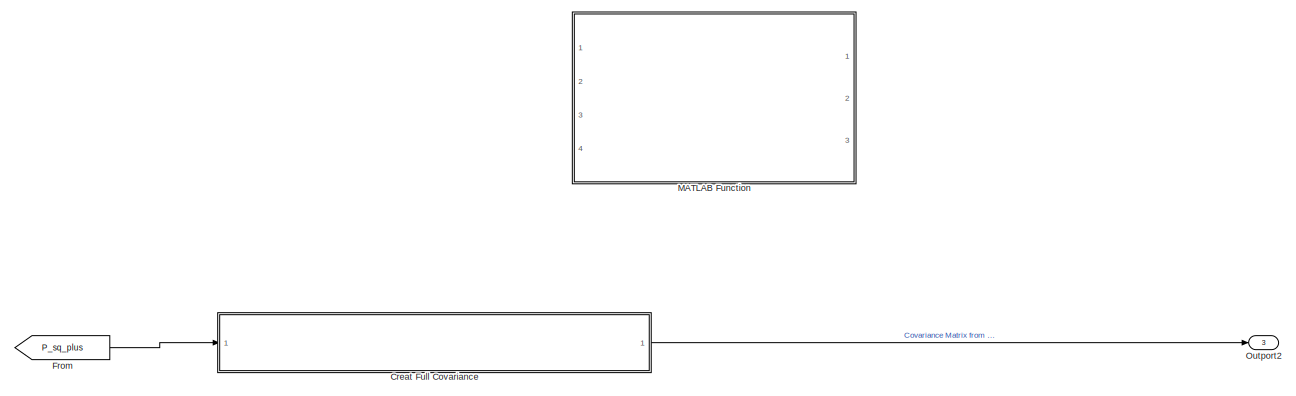
[diagram: root canvas - part 1/4, top center region]
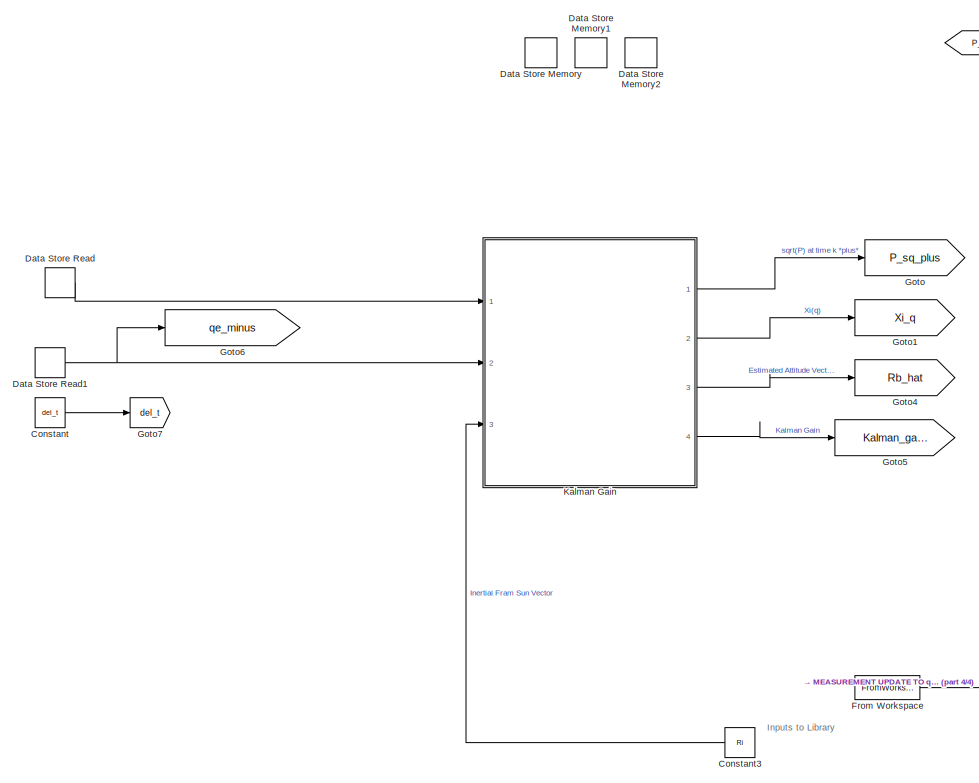
[diagram: root canvas - part 2/4, middle left region]
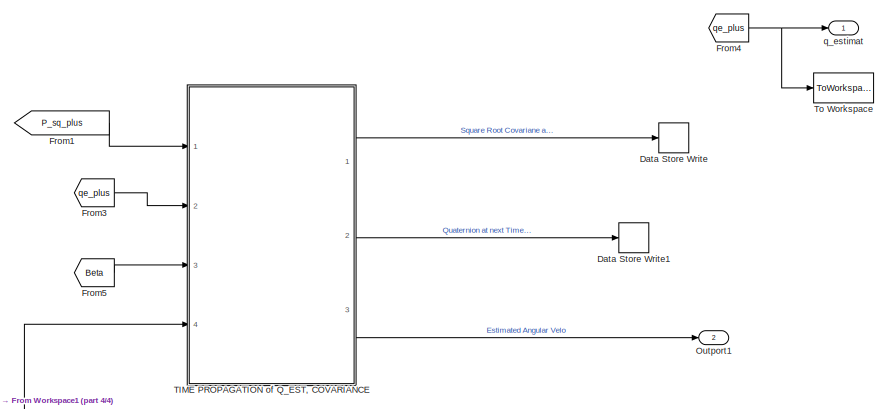
[diagram: root canvas - part 3/4, middle right region]
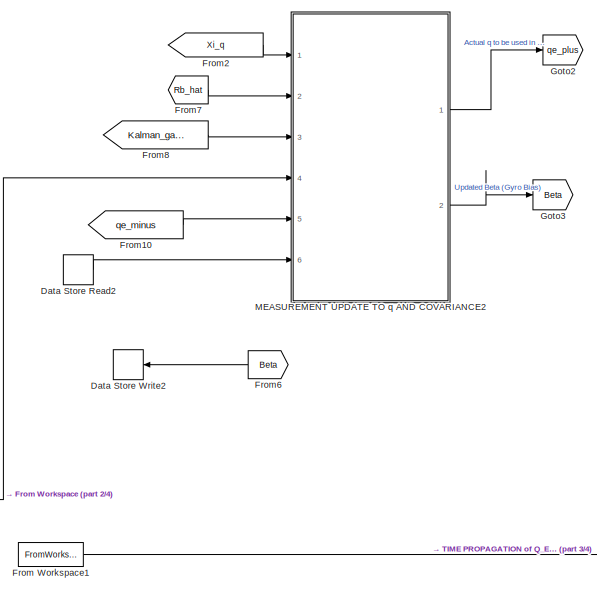
[diagram: root canvas - part 4/4, bottom center region]
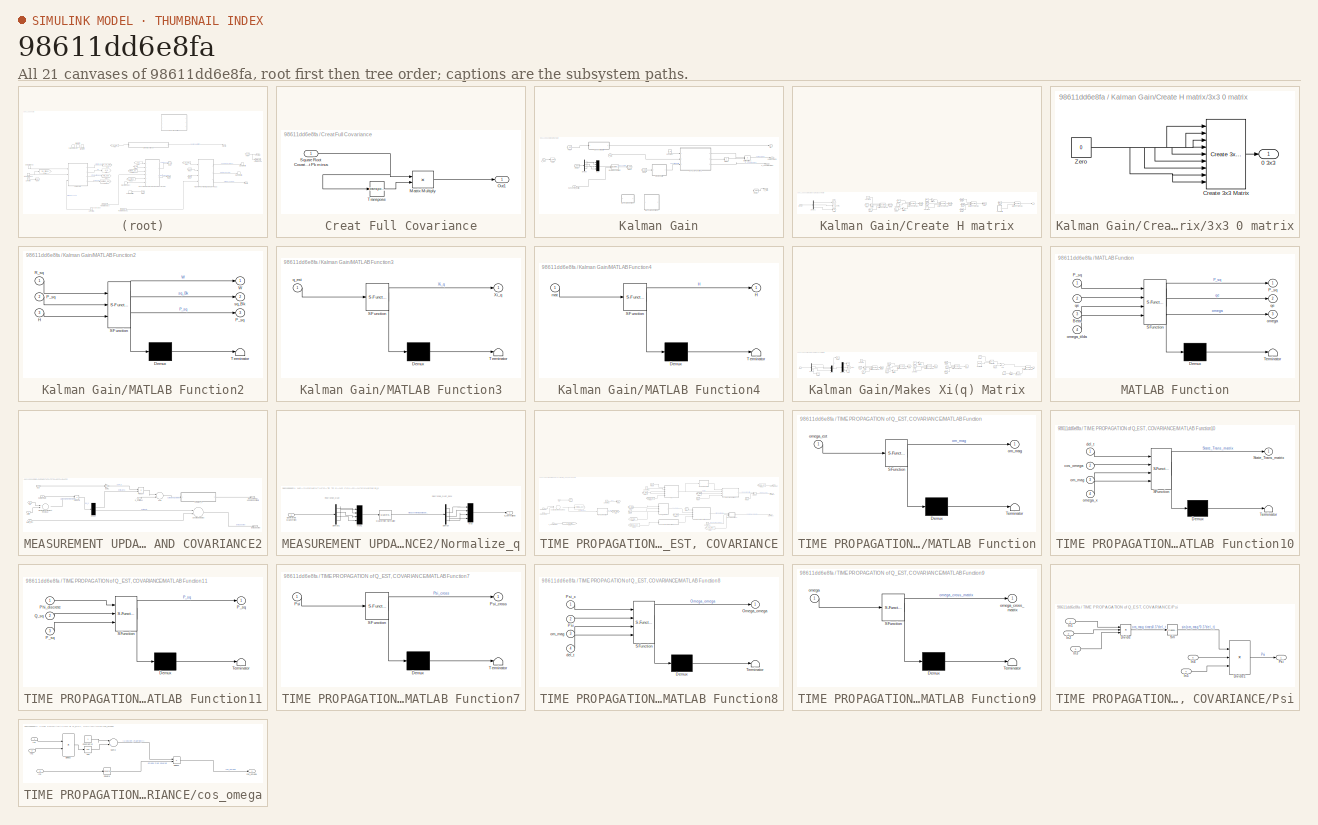
[diagram: thumbnail index - all 21 canvases of the model, root first then tree order]
MODEL slx_98611dd6e8fa
KIND model
CONFIG AbsTol = auto
CONFIG EnableMultiTasking = off
CONFIG FixedStep = auto
CONFIG MaxStep = auto
CONFIG MinStep = auto
CONFIG RelTol = 1e-3
CONFIG SampleTimeConstraint = Unconstrained
CONFIG Solver = VariableStepAuto
CONFIG SolverName = VariableStepAuto
CONFIG StartTime = 0.0
CONFIG StopTime = 10.0
BLOCK [Constant] Constant
  Value = del_t
BLOCK [Constant] Constant3
  Value = Ri
  VectorParams1D = off
BLOCK [SubSystem] Creat Full Covariance
  Ports = [1, 1]
  RequestExecContextInheritance = off
BLOCK [Product] Creat Full Covariance/Matrix Multiply
  InputSameDT = off
  Multiplication = Matrix(*)
  OutDataTypeStr = Inherit: Inherit via internal rule
  Ports = [2, 1]
  RndMeth = Floor
  SaturateOnIntegerOverflow = off
BLOCK [Outport] Creat Full Covariance/Out1
  IconDisplay = Port number
BLOCK [Inport] Creat Full Covariance/Square Root Covariane at next Time step becomes sqrt Pk minus
  IconDisplay = Port number
BLOCK [Math] Creat Full Covariance/Transpose
  Operator = transpose
  Ports = [1, 1]
BLOCK [DataStoreMemory] Data Store Memory
  DataStoreName = P_sq
  InitialValue = P_sq_init
  ShowAdditionalParam = off
  VectorParams1D = off
BLOCK [DataStoreMemory] Data Store Memory1
  DataStoreName = qe
  InitialValue = qe_init
  ShowAdditionalParam = off
  VectorParams1D = off
BLOCK [DataStoreMemory] Data Store Memory2
  DataStoreName = Beta
  InitialValue = Beta_init
  ShowAdditionalParam = off
  VectorParams1D = off
BLOCK [DataStoreRead] Data Store Read
  DataStoreName = P_sq
  Ports = [0, 1]
BLOCK [DataStoreRead] Data Store Read1
  DataStoreName = qe
  Ports = [0, 1]
BLOCK [DataStoreRead] Data Store Read2
  DataStoreName = Beta
  Ports = [0, 1]
BLOCK [DataStoreWrite] Data Store Write
  DataStoreName = P_sq
  Ports = [1]
BLOCK [DataStoreWrite] Data Store Write1
  DataStoreName = qe
  Ports = [1]
BLOCK [DataStoreWrite] Data Store Write2
  DataStoreName = Beta
  Ports = [1]
BLOCK [From] From
  GotoTag = P_sq_plus
BLOCK [FromWorkspace] From Workspace
  SampleTime = del_t
  VariableName = Rb1
  ZeroCross = on
BLOCK [FromWorkspace] From Workspace1
  SampleTime = del_t
  VariableName = om1
  ZeroCross = on
BLOCK [From] From1
  GotoTag = P_sq_plus
BLOCK [From] From10
  GotoTag = qe_minus
BLOCK [From] From2
  GotoTag = Xi_q
BLOCK [From] From3
  GotoTag = qe_plus
BLOCK [From] From4
  GotoTag = qe_plus
BLOCK [From] From5
  GotoTag = Beta
BLOCK [From] From6
  GotoTag = Beta
BLOCK [From] From7
  GotoTag = Rb_hat
BLOCK [From] From8
  GotoTag = Kalman_gain
BLOCK [Goto] Goto
  GotoTag = P_sq_plus
BLOCK [Goto] Goto1
  GotoTag = Xi_q
BLOCK [Goto] Goto2
  GotoTag = qe_plus
BLOCK [Goto] Goto3
  GotoTag = Beta
BLOCK [Goto] Goto4
  GotoTag = Rb_hat
BLOCK [Goto] Goto5
  GotoTag = Kalman_gain
BLOCK [Goto] Goto6
  GotoTag = qe_minus
BLOCK [Goto] Goto7
  GotoTag = del_t
  TagVisibility = global
BLOCK [SubSystem] Kalman Gain
  Ports = [3, 4]
  RequestExecContextInheritance = off
BLOCK [Outport] Kalman Gain/A_q*Ri
  IconDisplay = Port number
  Port = 3
BLOCK [Constant] Kalman Gain/Constant
  Value = R_sq
  VectorParams1D = off
BLOCK [SubSystem] Kalman Gain/Create H matrix
  Ports = [1, 1]
  RequestExecContextInheritance = off
BLOCK [SubSystem] Kalman Gain/Create H matrix/3x3 0 matrix
  Ports = [0, 1]
  RequestExecContextInheritance = off
BLOCK [Outport] Kalman Gain/Create H matrix/3x3 0 matrix/0 3x3
  IconDisplay = Port number
BLOCK [Reference] Kalman Gain/Create H matrix/3x3 0 matrix/Create 3x3 Matrix  REF=sharedutil/Create 3x3 Matrix
  Ports = [9, 1]
  SourceBlock = sharedutil/Create 3x3 Matrix
  SourceProductBaseCode = AE
  SourceProductName = Aerospace Blockset
  SourceType = Create 3x3 Matrix
BLOCK [Constant] Kalman Gain/Create H matrix/3x3 0 matrix/Zero
  OutDataTypeStr = Inherit: Inherit via back propagation
  Value = 0
BLOCK [Constant] Kalman Gain/Create H matrix/Constant1
  Value = 0
BLOCK [Constant] Kalman Gain/Create H matrix/Constant2
  Value = 0
BLOCK [Constant] Kalman Gain/Create H matrix/Constant3
  Value = 0
BLOCK [Demux] Kalman Gain/Create H matrix/Demux1
  DisplayOption = bar
  Outputs = 3
  Ports = [1, 3]
BLOCK [From] Kalman Gain/Create H matrix/From
  GotoTag = rb3
BLOCK [From] Kalman Gain/Create H matrix/From1
  GotoTag = rb2
BLOCK [From] Kalman Gain/Create H matrix/From2
  GotoTag = rb3
BLOCK [From] Kalman Gain/Create H matrix/From3
  GotoTag = rb1
BLOCK [From] Kalman Gain/Create H matrix/From4
  GotoTag = rb2
BLOCK [From] Kalman Gain/Create H matrix/From5
  GotoTag = rb1
BLOCK [From] Kalman Gain/Create H matrix/From6
  GotoTag = row1rb
BLOCK [From] Kalman Gain/Create H matrix/From7
  GotoTag = row2rb
BLOCK [From] Kalman Gain/Create H matrix/From8
  GotoTag = row3rb
BLOCK [From] Kalman Gain/Create H matrix/From9
  GotoTag = mat_x
BLOCK [Goto] Kalman Gain/Create H matrix/Goto
  GotoTag = rb3
BLOCK [Goto] Kalman Gain/Create H matrix/Goto1
  GotoTag = rb2
BLOCK [Goto] Kalman Gain/Create H matrix/Goto2
  GotoTag = rb1
BLOCK [Goto] Kalman Gain/Create H matrix/Goto3
  GotoTag = row1rb
BLOCK [Goto] Kalman Gain/Create H matrix/Goto4
  GotoTag = row2rb
BLOCK [Goto] Kalman Gain/Create H matrix/Goto5
  GotoTag = row3rb
BLOCK [Goto] Kalman Gain/Create H matrix/Goto7
  GotoTag = mat_x
BLOCK [Outport] Kalman Gain/Create H matrix/H
  IconDisplay = Port number
BLOCK [Concatenate] Kalman Gain/Create H matrix/Matrix Concatenate
  ConcatenateDimension = 2
  Mode = Multidimensional array
  NumInputs = 3
  Ports = [3, 1]
BLOCK [Concatenate] Kalman Gain/Create H matrix/Matrix Concatenate1
  ConcatenateDimension = 2
  Mode = Multidimensional array
  NumInputs = 3
  Ports = [3, 1]
BLOCK [Concatenate] Kalman Gain/Create H matrix/Matrix Concatenate2
  ConcatenateDimension = 2
  Mode = Multidimensional array
  NumInputs = 3
  Ports = [3, 1]
BLOCK [Concatenate] Kalman Gain/Create H matrix/Matrix Concatenate3
  Mode = Multidimensional array
  NumInputs = 3
  Ports = [3, 1]
BLOCK [Concatenate] Kalman Gain/Create H matrix/Matrix Concatenate4
  ConcatenateDimension = 2
  Mode = Multidimensional array
  Ports = [2, 1]
BLOCK [Gain] Kalman Gain/Create H matrix/Multiply
  Gain = -1
  OutDataTypeStr = Inherit: Inherit via internal rule
  ParamDataTypeStr = Inherit: Inherit via internal rule
  SaturateOnIntegerOverflow = off
BLOCK [Gain] Kalman Gain/Create H matrix/Multiply1
  Gain = -1
  OutDataTypeStr = Inherit: Inherit via internal rule
  ParamDataTypeStr = Inherit: Inherit via internal rule
  SaturateOnIntegerOverflow = off
BLOCK [Gain] Kalman Gain/Create H matrix/Multiply2
  Gain = -1
  OutDataTypeStr = Inherit: Inherit via internal rule
  ParamDataTypeStr = Inherit: Inherit via internal rule
  SaturateOnIntegerOverflow = off
BLOCK [Inport] Kalman Gain/Create H matrix/rb_hat
  IconDisplay = Port number
BLOCK [Demux] Kalman Gain/Demux
  DisplayOption = bar
  Ports = [1, 4]
BLOCK [Product] Kalman Gain/Divide
  InputSameDT = off
  Inputs = /
  Multiplication = Matrix(*)
  OutDataTypeStr = Inherit: Inherit via internal rule
  Ports = [1, 1]
  RndMeth = Floor
  SaturateOnIntegerOverflow = off
BLOCK [From] Kalman Gain/From
  GotoTag = q_est
BLOCK [From] Kalman Gain/From1
  GotoTag = q_est
BLOCK [From] Kalman Gain/From2
  GotoTag = rb_hat
BLOCK [From] Kalman Gain/From3
  GotoTag = rb_hat
BLOCK [Goto] Kalman Gain/Goto
  GotoTag = q_est
BLOCK [Goto] Kalman Gain/Goto1
  GotoTag = rb_hat
BLOCK [Outport] Kalman Gain/Kalman Gain K
  IconDisplay = Port number
  Port = 4
BLOCK [SubSystem] Kalman Gain/MATLAB Function2
  ErrorFcn = Stateflow.Translate.translate
  PermitHierarchicalResolution = ExplicitOnly
  Ports = [3, 3]
  RequestExecContextInheritance = off
  SFBlockType = MATLAB Function
  TreatAsAtomicUnit = on
BLOCK [Demux] Kalman Gain/MATLAB Function2/ Demux 
  Outputs = 1
  Ports = [1, 1]
BLOCK [S-Function] Kalman Gain/MATLAB Function2/ SFunction 
  EnableBusSupport = on
  FunctionName = sf_sfun
  PortCounts = [3 4]
  Ports = [3, 4]
  SFcnIsStateOwnerBlock = off
  SFunctionDeploymentMode = off
  Tag = Stateflow S-Function MEKF_Model_works 3
BLOCK [Terminator] Kalman Gain/MATLAB Function2/ Terminator 
BLOCK [Inport] Kalman Gain/MATLAB Function2/H
  IconDisplay = Port number
  Port = 3
BLOCK [Outport] Kalman Gain/MATLAB Function2/P_sq
  IconDisplay = Port number
  Port = 3
BLOCK [Inport] Kalman Gain/MATLAB Function2/P_sq 
  IconDisplay = Port number
  Port = 2
BLOCK [Inport] Kalman Gain/MATLAB Function2/R_sq
  IconDisplay = Port number
BLOCK [Outport] Kalman Gain/MATLAB Function2/W
  IconDisplay = Port number
BLOCK [Outport] Kalman Gain/MATLAB Function2/sq_Bk
  IconDisplay = Port number
  Port = 2
BLOCK [SubSystem] Kalman Gain/MATLAB Function3
  Commented = on
  ErrorFcn = Stateflow.Translate.translate
  PermitHierarchicalResolution = ExplicitOnly
  Ports = [1, 1]
  RequestExecContextInheritance = off
  SFBlockType = MATLAB Function
  TreatAsAtomicUnit = on
BLOCK [Demux] Kalman Gain/MATLAB Function3/ Demux 
  Outputs = 1
  Ports = [1, 1]
BLOCK [S-Function] Kalman Gain/MATLAB Function3/ SFunction 
  EnableBusSupport = on
  FunctionName = sf_sfun
  PortCounts = [1 2]
  Ports = [1, 2]
  SFcnIsStateOwnerBlock = off
  SFunctionDeploymentMode = off
  Tag = Stateflow S-Function MEKF_Model_works 4
BLOCK [Terminator] Kalman Gain/MATLAB Function3/ Terminator 
BLOCK [Outport] Kalman Gain/MATLAB Function3/Xi_q
  IconDisplay = Port number
BLOCK [Inport] Kalman Gain/MATLAB Function3/q_est
  IconDisplay = Port number
BLOCK [SubSystem] Kalman Gain/MATLAB Function4
  Commented = on
  ErrorFcn = Stateflow.Translate.translate
  PermitHierarchicalResolution = ExplicitOnly
  Ports = [1, 1]
  RequestExecContextInheritance = off
  SFBlockType = MATLAB Function
  TreatAsAtomicUnit = on
BLOCK [Demux] Kalman Gain/MATLAB Function4/ Demux 
  Outputs = 1
  Ports = [1, 1]
BLOCK [S-Function] Kalman Gain/MATLAB Function4/ SFunction 
  EnableBusSupport = on
  FunctionName = sf_sfun
  PortCounts = [1 2]
  Ports = [1, 2]
  SFcnIsStateOwnerBlock = off
  SFunctionDeploymentMode = off
  Tag = Stateflow S-Function MEKF_Model_works 2
BLOCK [Terminator] Kalman Gain/MATLAB Function4/ Terminator 
BLOCK [Outport] Kalman Gain/MATLAB Function4/H
  IconDisplay = Port number
BLOCK [Inport] Kalman Gain/MATLAB Function4/mat
  IconDisplay = Port number
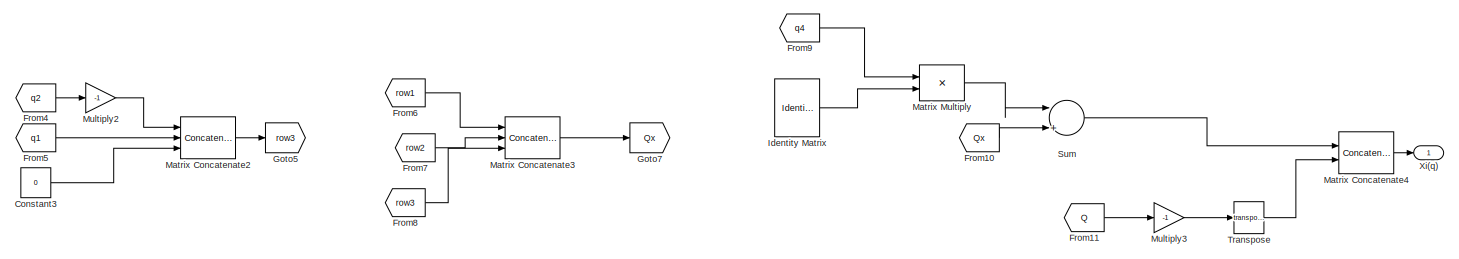
[diagram: Kalman Gain/Makes Xi(q) Matrix - part 1/2, right side, full height]
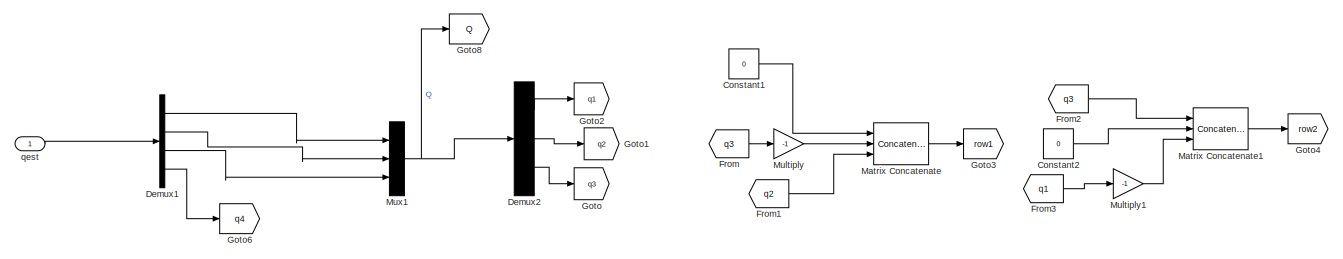
[diagram: Kalman Gain/Makes Xi(q) Matrix - part 2/2, left side, full height]
BLOCK [SubSystem] Kalman Gain/Makes Xi(q) Matrix
  Ports = [1, 1]
  RequestExecContextInheritance = off
BLOCK [Constant] Kalman Gain/Makes Xi(q) Matrix/Constant1
  Value = 0
BLOCK [Constant] Kalman Gain/Makes Xi(q) Matrix/Constant2
  Value = 0
BLOCK [Constant] Kalman Gain/Makes Xi(q) Matrix/Constant3
  Value = 0
BLOCK [Demux] Kalman Gain/Makes Xi(q) Matrix/Demux1
  DisplayOption = bar
  Ports = [1, 4]
BLOCK [Demux] Kalman Gain/Makes Xi(q) Matrix/Demux2
  DisplayOption = bar
  Outputs = 3
  Ports = [1, 3]
BLOCK [From] Kalman Gain/Makes Xi(q) Matrix/From
  GotoTag = q3
BLOCK [From] Kalman Gain/Makes Xi(q) Matrix/From1
  GotoTag = q2
BLOCK [From] Kalman Gain/Makes Xi(q) Matrix/From10
  GotoTag = Qx
BLOCK [From] Kalman Gain/Makes Xi(q) Matrix/From11
  GotoTag = Q
BLOCK [From] Kalman Gain/Makes Xi(q) Matrix/From2
  GotoTag = q3
BLOCK [From] Kalman Gain/Makes Xi(q) Matrix/From3
  GotoTag = q1
BLOCK [From] Kalman Gain/Makes Xi(q) Matrix/From4
  GotoTag = q2
BLOCK [From] Kalman Gain/Makes Xi(q) Matrix/From5
  GotoTag = q1
BLOCK [From] Kalman Gain/Makes Xi(q) Matrix/From6
  GotoTag = row1
BLOCK [From] Kalman Gain/Makes Xi(q) Matrix/From7
  GotoTag = row2
BLOCK [From] Kalman Gain/Makes Xi(q) Matrix/From8
  GotoTag = row3
BLOCK [From] Kalman Gain/Makes Xi(q) Matrix/From9
  GotoTag = q4
BLOCK [Goto] Kalman Gain/Makes Xi(q) Matrix/Goto
  GotoTag = q3
BLOCK [Goto] Kalman Gain/Makes Xi(q) Matrix/Goto1
  GotoTag = q2
BLOCK [Goto] Kalman Gain/Makes Xi(q) Matrix/Goto2
  GotoTag = q1
BLOCK [Goto] Kalman Gain/Makes Xi(q) Matrix/Goto3
  GotoTag = row1
BLOCK [Goto] Kalman Gain/Makes Xi(q) Matrix/Goto4
  GotoTag = row2
BLOCK [Goto] Kalman Gain/Makes Xi(q) Matrix/Goto5
  GotoTag = row3
BLOCK [Goto] Kalman Gain/Makes Xi(q) Matrix/Goto6
  GotoTag = q4
BLOCK [Goto] Kalman Gain/Makes Xi(q) Matrix/Goto7
  GotoTag = Qx
BLOCK [Goto] Kalman Gain/Makes Xi(q) Matrix/Goto8
  GotoTag = Q
BLOCK [Reference] Kalman Gain/Makes Xi(q) Matrix/Identity Matrix  REF=dspmtrx3/Identity Matrix
  Ports = [0, 1]
  SourceBlock = dspmtrx3/Identity Matrix
  SourceProductBaseCode = DS
  SourceProductName = DSP System Toolbox
  SourceType = Identity Matrix
BLOCK [Concatenate] Kalman Gain/Makes Xi(q) Matrix/Matrix Concatenate
  ConcatenateDimension = 2
  Mode = Multidimensional array
  NumInputs = 3
  Ports = [3, 1]
BLOCK [Concatenate] Kalman Gain/Makes Xi(q) Matrix/Matrix Concatenate1
  ConcatenateDimension = 2
  Mode = Multidimensional array
  NumInputs = 3
  Ports = [3, 1]
BLOCK [Concatenate] Kalman Gain/Makes Xi(q) Matrix/Matrix Concatenate2
  ConcatenateDimension = 2
  Mode = Multidimensional array
  NumInputs = 3
  Ports = [3, 1]
BLOCK [Concatenate] Kalman Gain/Makes Xi(q) Matrix/Matrix Concatenate3
  Mode = Multidimensional array
  NumInputs = 3
  Ports = [3, 1]
BLOCK [Concatenate] Kalman Gain/Makes Xi(q) Matrix/Matrix Concatenate4
  Mode = Multidimensional array
  Ports = [2, 1]
BLOCK [Product] Kalman Gain/Makes Xi(q) Matrix/Matrix Multiply
  InputSameDT = off
  Inputs = **
  OutDataTypeStr = Inherit: Inherit via internal rule
  Ports = [2, 1]
  RndMeth = Floor
  SaturateOnIntegerOverflow = off
BLOCK [Gain] Kalman Gain/Makes Xi(q) Matrix/Multiply
  Gain = -1
  OutDataTypeStr = Inherit: Inherit via internal rule
  ParamDataTypeStr = Inherit: Inherit via internal rule
  SaturateOnIntegerOverflow = off
BLOCK [Gain] Kalman Gain/Makes Xi(q) Matrix/Multiply1
  Gain = -1
  OutDataTypeStr = Inherit: Inherit via internal rule
  ParamDataTypeStr = Inherit: Inherit via internal rule
  SaturateOnIntegerOverflow = off
BLOCK [Gain] Kalman Gain/Makes Xi(q) Matrix/Multiply2
  Gain = -1
  OutDataTypeStr = Inherit: Inherit via internal rule
  ParamDataTypeStr = Inherit: Inherit via internal rule
  SaturateOnIntegerOverflow = off
BLOCK [Gain] Kalman Gain/Makes Xi(q) Matrix/Multiply3
  Gain = -1
  OutDataTypeStr = Inherit: Inherit via internal rule
  ParamDataTypeStr = Inherit: Inherit via internal rule
  SaturateOnIntegerOverflow = off
BLOCK [Mux] Kalman Gain/Makes Xi(q) Matrix/Mux1
  DisplayOption = bar
  Inputs = 3
  Ports = [3, 1]
BLOCK [Sum] Kalman Gain/Makes Xi(q) Matrix/Sum
  InputSameDT = off
  Inputs = |++
  OutDataTypeStr = Inherit: Inherit via internal rule
  Ports = [2, 1]
  SaturateOnIntegerOverflow = off
BLOCK [Math] Kalman Gain/Makes Xi(q) Matrix/Transpose
  Operator = transpose
  Ports = [1, 1]
BLOCK [Outport] Kalman Gain/Makes Xi(q) Matrix/Xi(q)
  IconDisplay = Port number
BLOCK [Inport] Kalman Gain/Makes Xi(q) Matrix/qest
  IconDisplay = Port number
BLOCK [Product] Kalman Gain/Matrix Multiply1
  InputSameDT = off
  Multiplication = Matrix(*)
  OutDataTypeStr = Inherit: Inherit via internal rule
  Ports = [2, 1]
  RndMeth = Floor
  SaturateOnIntegerOverflow = off
BLOCK [Mux] Kalman Gain/Mux
  DisplayOption = bar
  Ports = [4, 1]
BLOCK [Inport] Kalman Gain/P_sq
  IconDisplay = Port number
BLOCK [Outport] Kalman Gain/P_square root plus
  IconDisplay = Port number
BLOCK [Reference] Kalman Gain/Quaternion Rotation  REF=aerolibutil/Quaternion
Rotation
  Ports = [2, 1]
  SourceBlock = aerolibutil/Quaternion\nRotation
  SourceProductBaseCode = AE
  SourceProductName = Aerospace Blockset
  SourceType = Quaternion Rotation
BLOCK [Inport] Kalman Gain/SunVector_Inertial
  IconDisplay = Port number
  Port = 3
BLOCK [Outport] Kalman Gain/Xi(q)
  IconDisplay = Port number
  Port = 2
BLOCK [Inport] Kalman Gain/q_est
  IconDisplay = Port number
  Port = 2
BLOCK [SubSystem] MATLAB Function
  Commented = on
  ErrorFcn = Stateflow.Translate.translate
  PermitHierarchicalResolution = ExplicitOnly
  Ports = [4, 3]
  RequestExecContextInheritance = off
  SFBlockType = MATLAB Function
  TreatAsAtomicUnit = on
BLOCK [Demux] MATLAB Function/ Demux 
  Outputs = 1
  Ports = [1, 1]
BLOCK [S-Function] MATLAB Function/ SFunction 
  EnableBusSupport = on
  FunctionName = sf_sfun
  PortCounts = [4 4]
  Ports = [4, 4]
  SFcnIsStateOwnerBlock = off
  SFunctionDeploymentMode = off
  Tag = Stateflow S-Function MEKF_Model_works 16
BLOCK [Terminator] MATLAB Function/ Terminator 
BLOCK [Inport] MATLAB Function/Beta
  IconDisplay = Port number
  Port = 3
BLOCK [Outport] MATLAB Function/P_sq
  IconDisplay = Port number
BLOCK [Inport] MATLAB Function/P_sq 
  IconDisplay = Port number
BLOCK [Outport] MATLAB Function/omega
  IconDisplay = Port number
  Port = 3
BLOCK [Inport] MATLAB Function/omega_tilda
  IconDisplay = Port number
  Port = 4
BLOCK [Outport] MATLAB Function/qe
  IconDisplay = Port number
  Port = 2
BLOCK [Inport] MATLAB Function/qe 
  IconDisplay = Port number
  Port = 2
BLOCK [SubSystem] MEASUREMENT UPDATE TO q AND COVARIANCE2
  Ports = [6, 2]
  RequestExecContextInheritance = off
BLOCK [Inport] MEASUREMENT UPDATE TO q AND COVARIANCE2/A(q)*Ri
  IconDisplay = Port number
  Port = 2
BLOCK [Outport] MEASUREMENT UPDATE TO q AND COVARIANCE2/Beta Updated
  IconDisplay = Port number
  Port = 2
BLOCK [Inport] MEASUREMENT UPDATE TO q AND COVARIANCE2/Beta_est
  IconDisplay = Port number
  Port = 6
BLOCK [Sum] MEASUREMENT UPDATE TO q AND COVARIANCE2/Create Measurement Residual
  InputSameDT = off
  Inputs = +-
  OutDataTypeStr = Inherit: Inherit via internal rule
  Ports = [2, 1]
  SaturateOnIntegerOverflow = off
BLOCK [Demux] MEASUREMENT UPDATE TO q AND COVARIANCE2/Demux
  DisplayOption = bar
  Outputs = 2
  Ports = [1, 2]
BLOCK [Inport] MEASUREMENT UPDATE TO q AND COVARIANCE2/Kalman Gain
  IconDisplay = Port number
  Port = 3
BLOCK [Outport] MEASUREMENT UPDATE TO q AND COVARIANCE2/Measurement updated q estimate
  IconDisplay = Port number
BLOCK [SubSystem] MEASUREMENT UPDATE TO q AND COVARIANCE2/Normalize_q
  Ports = [1, 1]
  RequestExecContextInheritance = off
BLOCK [Demux] MEASUREMENT UPDATE TO q AND COVARIANCE2/Normalize_q/Demux
  DisplayOption = bar
  Ports = [1, 4]
BLOCK [Demux] MEASUREMENT UPDATE TO q AND COVARIANCE2/Normalize_q/Demux1
  DisplayOption = bar
  Ports = [1, 4]
BLOCK [Inport] MEASUREMENT UPDATE TO q AND COVARIANCE2/Normalize_q/Estimated Quaternion
  IconDisplay = Port number
BLOCK [Mux] MEASUREMENT UPDATE TO q AND COVARIANCE2/Normalize_q/Mux
  DisplayOption = bar
  Ports = [4, 1]
BLOCK [Mux] MEASUREMENT UPDATE TO q AND COVARIANCE2/Normalize_q/Mux1
  DisplayOption = bar
  Ports = [4, 1]
BLOCK [Reference] MEASUREMENT UPDATE TO q AND COVARIANCE2/Normalize_q/Quaternion Normalize  REF=sharedutil/Quaternion
Normalize
  Ports = [1, 1]
  SourceBlock = sharedutil/Quaternion\nNormalize
  SourceProductBaseCode = AE
  SourceProductName = Aerospace Blockset
  SourceType = Quaternion Normalize
BLOCK [Outport] MEASUREMENT UPDATE TO q AND COVARIANCE2/Normalize_q/q_normalized
  IconDisplay = Port number
BLOCK [Product] MEASUREMENT UPDATE TO q AND COVARIANCE2/Product
  InputSameDT = off
  Inputs = **
  Multiplication = Matrix(*)
  OutDataTypeStr = Inherit: Inherit via internal rule
  Ports = [2, 1]
  RndMeth = Floor
  SaturateOnIntegerOverflow = off
BLOCK [Product] MEASUREMENT UPDATE TO q AND COVARIANCE2/Product1
  InputSameDT = off
  Multiplication = Matrix(*)
  OutDataTypeStr = Inherit: Inherit via internal rule
  Ports = [2, 1]
  RndMeth = Floor
  SaturateOnIntegerOverflow = off
BLOCK [Inport] MEASUREMENT UPDATE TO q AND COVARIANCE2/Rb
  IconDisplay = Port number
  Port = 4
BLOCK [Sum] MEASUREMENT UPDATE TO q AND COVARIANCE2/Sum
  InputSameDT = off
  Inputs = |++
  OutDataTypeStr = Inherit: Inherit via internal rule
  Ports = [2, 1]
  SaturateOnIntegerOverflow = off
BLOCK [Sum] MEASUREMENT UPDATE TO q AND COVARIANCE2/Updating Beta Bias 
  InputSameDT = off
  Inputs = |++
  OutDataTypeStr = Inherit: Inherit via internal rule
  Ports = [2, 1]
  SaturateOnIntegerOverflow = off
BLOCK [Inport] MEASUREMENT UPDATE TO q AND COVARIANCE2/Xi_q
  IconDisplay = Port number
BLOCK [Gain] MEASUREMENT UPDATE TO q AND COVARIANCE2/gain1
  Gain = 0.5
  OutDataTypeStr = Inherit: Inherit via internal rule
  ParamDataTypeStr = Inherit: Inherit via internal rule
  SaturateOnIntegerOverflow = off
BLOCK [Inport] MEASUREMENT UPDATE TO q AND COVARIANCE2/q_est minus
  IconDisplay = Port number
  Port = 5
BLOCK [Outport] Outport1
  IconDisplay = Port number
  Port = 2
  SignalName = Angular_velo_estimated
BLOCK [Outport] Outport2
  IconDisplay = Port number
  Port = 3
  SignalName = Covariance_Matrix
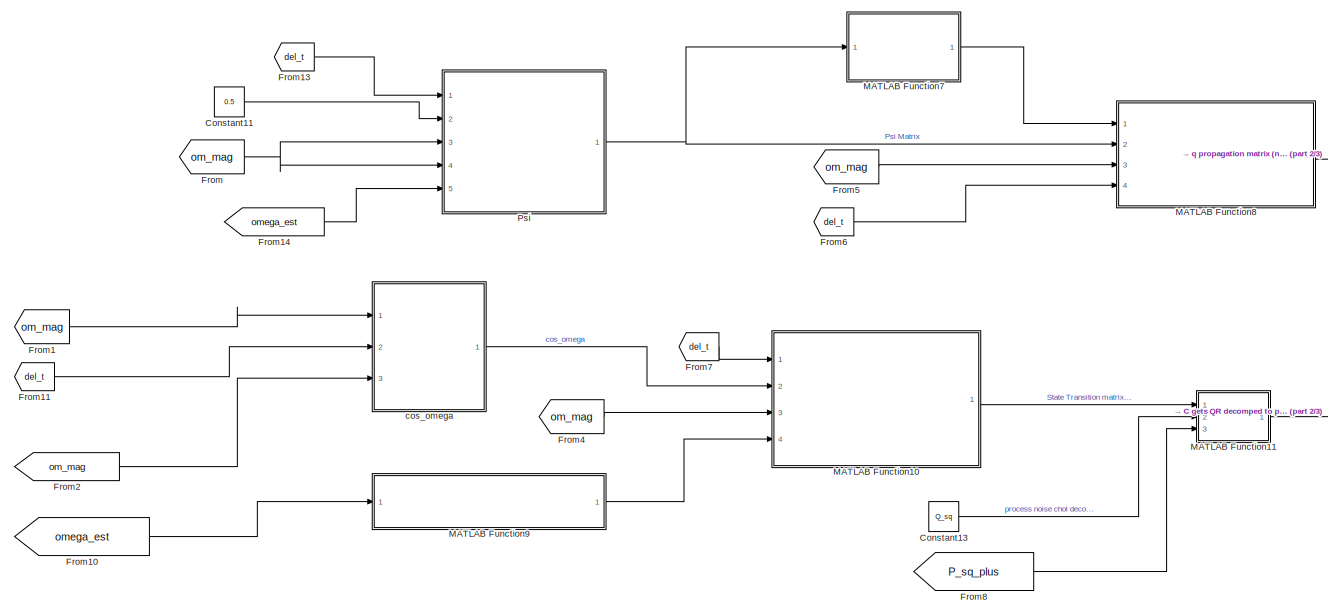
[diagram: TIME PROPAGATION of Q_EST, COVARIANCE - part 1/3, center side, full height]
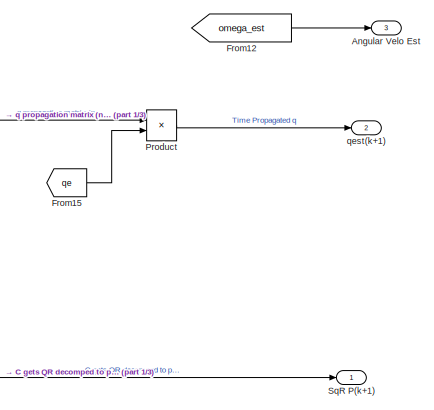
[diagram: TIME PROPAGATION of Q_EST, COVARIANCE - part 2/3, middle right region]
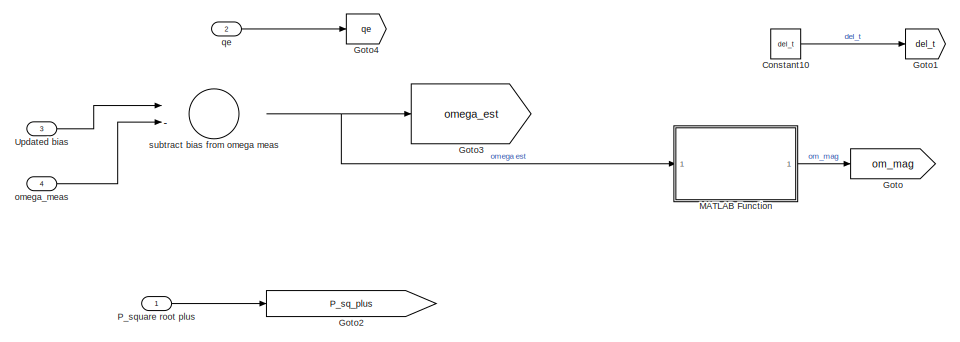
[diagram: TIME PROPAGATION of Q_EST, COVARIANCE - part 3/3, middle left region]
BLOCK [SubSystem] TIME PROPAGATION of Q_EST, COVARIANCE
  Ports = [4, 3]
  RequestExecContextInheritance = off
BLOCK [Outport] TIME PROPAGATION of Q_EST, COVARIANCE/Angular Velo Est
  IconDisplay = Port number
  Port = 3
BLOCK [Constant] TIME PROPAGATION of Q_EST, COVARIANCE/Constant10
  Commented = on
  Value = del_t
BLOCK [Constant] TIME PROPAGATION of Q_EST, COVARIANCE/Constant11
  Value = 0.5
BLOCK [Constant] TIME PROPAGATION of Q_EST, COVARIANCE/Constant13
  Value = Q_sq
  VectorParams1D = off
BLOCK [From] TIME PROPAGATION of Q_EST, COVARIANCE/From
  GotoTag = om_mag
BLOCK [From] TIME PROPAGATION of Q_EST, COVARIANCE/From1
  GotoTag = om_mag
BLOCK [From] TIME PROPAGATION of Q_EST, COVARIANCE/From10
  GotoTag = omega_est
BLOCK [From] TIME PROPAGATION of Q_EST, COVARIANCE/From11
  GotoTag = del_t
  TagVisibility = global
BLOCK [From] TIME PROPAGATION of Q_EST, COVARIANCE/From12
  GotoTag = omega_est
BLOCK [From] TIME PROPAGATION of Q_EST, COVARIANCE/From13
  GotoTag = del_t
  TagVisibility = global
BLOCK [From] TIME PROPAGATION of Q_EST, COVARIANCE/From14
  GotoTag = omega_est
BLOCK [From] TIME PROPAGATION of Q_EST, COVARIANCE/From15
  GotoTag = qe
BLOCK [From] TIME PROPAGATION of Q_EST, COVARIANCE/From2
  GotoTag = om_mag
BLOCK [From] TIME PROPAGATION of Q_EST, COVARIANCE/From4
  GotoTag = om_mag
BLOCK [From] TIME PROPAGATION of Q_EST, COVARIANCE/From5
  GotoTag = om_mag
BLOCK [From] TIME PROPAGATION of Q_EST, COVARIANCE/From6
  GotoTag = del_t
  TagVisibility = global
BLOCK [From] TIME PROPAGATION of Q_EST, COVARIANCE/From7
  GotoTag = del_t
  TagVisibility = global
BLOCK [From] TIME PROPAGATION of Q_EST, COVARIANCE/From8
  GotoTag = P_sq_plus
BLOCK [Goto] TIME PROPAGATION of Q_EST, COVARIANCE/Goto
  GotoTag = om_mag
BLOCK [Goto] TIME PROPAGATION of Q_EST, COVARIANCE/Goto1
  Commented = on
  GotoTag = del_t
BLOCK [Goto] TIME PROPAGATION of Q_EST, COVARIANCE/Goto2
  GotoTag = P_sq_plus
BLOCK [Goto] TIME PROPAGATION of Q_EST, COVARIANCE/Goto3
  GotoTag = omega_est
BLOCK [Goto] TIME PROPAGATION of Q_EST, COVARIANCE/Goto4
  GotoTag = qe
BLOCK [SubSystem] TIME PROPAGATION of Q_EST, COVARIANCE/MATLAB Function
  ErrorFcn = Stateflow.Translate.translate
  PermitHierarchicalResolution = ExplicitOnly
  Ports = [1, 1]
  RequestExecContextInheritance = off
  SFBlockType = MATLAB Function
  TreatAsAtomicUnit = on
BLOCK [Demux] TIME PROPAGATION of Q_EST, COVARIANCE/MATLAB Function/ Demux 
  Outputs = 1
  Ports = [1, 1]
BLOCK [S-Function] TIME PROPAGATION of Q_EST, COVARIANCE/MATLAB Function/ SFunction 
  EnableBusSupport = on
  FunctionName = sf_sfun
  PortCounts = [1 2]
  Ports = [1, 2]
  SFcnIsStateOwnerBlock = off
  SFunctionDeploymentMode = off
  Tag = Stateflow S-Function MEKF_Model_works 15
BLOCK [Terminator] TIME PROPAGATION of Q_EST, COVARIANCE/MATLAB Function/ Terminator 
BLOCK [Outport] TIME PROPAGATION of Q_EST, COVARIANCE/MATLAB Function/om_mag
  IconDisplay = Port number
BLOCK [Inport] TIME PROPAGATION of Q_EST, COVARIANCE/MATLAB Function/omega_est
  IconDisplay = Port number
BLOCK [SubSystem] TIME PROPAGATION of Q_EST, COVARIANCE/MATLAB Function10
  ErrorFcn = Stateflow.Translate.translate
  PermitHierarchicalResolution = ExplicitOnly
  Ports = [4, 1]
  RequestExecContextInheritance = off
  SFBlockType = MATLAB Function
  TreatAsAtomicUnit = on
BLOCK [Demux] TIME PROPAGATION of Q_EST, COVARIANCE/MATLAB Function10/ Demux 
  Outputs = 1
  Ports = [1, 1]
BLOCK [S-Function] TIME PROPAGATION of Q_EST, COVARIANCE/MATLAB Function10/ SFunction 
  EnableBusSupport = on
  FunctionName = sf_sfun
  PortCounts = [4 2]
  Ports = [4, 2]
  SFcnIsStateOwnerBlock = off
  SFunctionDeploymentMode = off
  Tag = Stateflow S-Function MEKF_Model_works 11
BLOCK [Terminator] TIME PROPAGATION of Q_EST, COVARIANCE/MATLAB Function10/ Terminator 
BLOCK [Outport] TIME PROPAGATION of Q_EST, COVARIANCE/MATLAB Function10/State_Trans_matrix
  IconDisplay = Port number
BLOCK [Inport] TIME PROPAGATION of Q_EST, COVARIANCE/MATLAB Function10/cos_omega
  IconDisplay = Port number
  Port = 2
BLOCK [Inport] TIME PROPAGATION of Q_EST, COVARIANCE/MATLAB Function10/del_t
  IconDisplay = Port number
BLOCK [Inport] TIME PROPAGATION of Q_EST, COVARIANCE/MATLAB Function10/om_mag
  IconDisplay = Port number
  Port = 3
BLOCK [Inport] TIME PROPAGATION of Q_EST, COVARIANCE/MATLAB Function10/omega_x
  IconDisplay = Port number
  Port = 4
BLOCK [SubSystem] TIME PROPAGATION of Q_EST, COVARIANCE/MATLAB Function11
  ErrorFcn = Stateflow.Translate.translate
  PermitHierarchicalResolution = ExplicitOnly
  Ports = [3, 1]
  RequestExecContextInheritance = off
  SFBlockType = MATLAB Function
  TreatAsAtomicUnit = on
BLOCK [Demux] TIME PROPAGATION of Q_EST, COVARIANCE/MATLAB Function11/ Demux 
  Outputs = 1
  Ports = [1, 1]
BLOCK [S-Function] TIME PROPAGATION of Q_EST, COVARIANCE/MATLAB Function11/ SFunction 
  EnableBusSupport = on
  FunctionName = sf_sfun
  PortCounts = [3 2]
  Ports = [3, 2]
  SFcnIsStateOwnerBlock = off
  SFunctionDeploymentMode = off
  Tag = Stateflow S-Function MEKF_Model_works 12
BLOCK [Terminator] TIME PROPAGATION of Q_EST, COVARIANCE/MATLAB Function11/ Terminator 
BLOCK [Outport] TIME PROPAGATION of Q_EST, COVARIANCE/MATLAB Function11/P_sq
  IconDisplay = Port number
BLOCK [Inport] TIME PROPAGATION of Q_EST, COVARIANCE/MATLAB Function11/P_sq 
  IconDisplay = Port number
  Port = 3
BLOCK [Inport] TIME PROPAGATION of Q_EST, COVARIANCE/MATLAB Function11/Phi_discrete
  IconDisplay = Port number
BLOCK [Inport] TIME PROPAGATION of Q_EST, COVARIANCE/MATLAB Function11/Q_sq
  IconDisplay = Port number
  Port = 2
BLOCK [SubSystem] TIME PROPAGATION of Q_EST, COVARIANCE/MATLAB Function7
  ErrorFcn = Stateflow.Translate.translate
  PermitHierarchicalResolution = ExplicitOnly
  Ports = [1, 1]
  RequestExecContextInheritance = off
  SFBlockType = MATLAB Function
  TreatAsAtomicUnit = on
BLOCK [Demux] TIME PROPAGATION of Q_EST, COVARIANCE/MATLAB Function7/ Demux 
  Outputs = 1
  Ports = [1, 1]
BLOCK [S-Function] TIME PROPAGATION of Q_EST, COVARIANCE/MATLAB Function7/ SFunction 
  EnableBusSupport = on
  FunctionName = sf_sfun
  PortCounts = [1 2]
  Ports = [1, 2]
  SFcnIsStateOwnerBlock = off
  SFunctionDeploymentMode = off
  Tag = Stateflow S-Function MEKF_Model_works 8
BLOCK [Terminator] TIME PROPAGATION of Q_EST, COVARIANCE/MATLAB Function7/ Terminator 
BLOCK [Inport] TIME PROPAGATION of Q_EST, COVARIANCE/MATLAB Function7/Psi
  IconDisplay = Port number
BLOCK [Outport] TIME PROPAGATION of Q_EST, COVARIANCE/MATLAB Function7/Psi_cross
  IconDisplay = Port number
BLOCK [SubSystem] TIME PROPAGATION of Q_EST, COVARIANCE/MATLAB Function8
  ErrorFcn = Stateflow.Translate.translate
  PermitHierarchicalResolution = ExplicitOnly
  Ports = [4, 1]
  RequestExecContextInheritance = off
  SFBlockType = MATLAB Function
  TreatAsAtomicUnit = on
BLOCK [Demux] TIME PROPAGATION of Q_EST, COVARIANCE/MATLAB Function8/ Demux 
  Outputs = 1
  Ports = [1, 1]
BLOCK [S-Function] TIME PROPAGATION of Q_EST, COVARIANCE/MATLAB Function8/ SFunction 
  EnableBusSupport = on
  FunctionName = sf_sfun
  PortCounts = [4 2]
  Ports = [4, 2]
  SFcnIsStateOwnerBlock = off
  SFunctionDeploymentMode = off
  Tag = Stateflow S-Function MEKF_Model_works 9
BLOCK [Terminator] TIME PROPAGATION of Q_EST, COVARIANCE/MATLAB Function8/ Terminator 
BLOCK [Outport] TIME PROPAGATION of Q_EST, COVARIANCE/MATLAB Function8/Omega_omega
  IconDisplay = Port number
BLOCK [Inport] TIME PROPAGATION of Q_EST, COVARIANCE/MATLAB Function8/Psi
  IconDisplay = Port number
  Port = 2
BLOCK [Inport] TIME PROPAGATION of Q_EST, COVARIANCE/MATLAB Function8/Psi_x
  IconDisplay = Port number
BLOCK [Inport] TIME PROPAGATION of Q_EST, COVARIANCE/MATLAB Function8/del_t
  IconDisplay = Port number
  Port = 4
BLOCK [Inport] TIME PROPAGATION of Q_EST, COVARIANCE/MATLAB Function8/om_mag
  IconDisplay = Port number
  Port = 3
BLOCK [SubSystem] TIME PROPAGATION of Q_EST, COVARIANCE/MATLAB Function9
  ErrorFcn = Stateflow.Translate.translate
  PermitHierarchicalResolution = ExplicitOnly
  Ports = [1, 1]
  RequestExecContextInheritance = off
  SFBlockType = MATLAB Function
  TreatAsAtomicUnit = on
BLOCK [Demux] TIME PROPAGATION of Q_EST, COVARIANCE/MATLAB Function9/ Demux 
  Outputs = 1
  Ports = [1, 1]
BLOCK [S-Function] TIME PROPAGATION of Q_EST, COVARIANCE/MATLAB Function9/ SFunction 
  EnableBusSupport = on
  FunctionName = sf_sfun
  PortCounts = [1 2]
  Ports = [1, 2]
  SFcnIsStateOwnerBlock = off
  SFunctionDeploymentMode = off
  Tag = Stateflow S-Function MEKF_Model_works 10
BLOCK [Terminator] TIME PROPAGATION of Q_EST, COVARIANCE/MATLAB Function9/ Terminator 
BLOCK [Inport] TIME PROPAGATION of Q_EST, COVARIANCE/MATLAB Function9/omega
  IconDisplay = Port number
BLOCK [Outport] TIME PROPAGATION of Q_EST, COVARIANCE/MATLAB Function9/omega_cross_matrix
  IconDisplay = Port number
BLOCK [Inport] TIME PROPAGATION of Q_EST, COVARIANCE/P_square root plus
  IconDisplay = Port number
BLOCK [Product] TIME PROPAGATION of Q_EST, COVARIANCE/Product
  InputSameDT = off
  Multiplication = Matrix(*)
  OutDataTypeStr = Inherit: Inherit via internal rule
  Ports = [2, 1]
  RndMeth = Floor
  SaturateOnIntegerOverflow = off
BLOCK [SubSystem] TIME PROPAGATION of Q_EST, COVARIANCE/Psi
  Ports = [5, 1]
  RequestExecContextInheritance = off
BLOCK [Product] TIME PROPAGATION of Q_EST, COVARIANCE/Psi/Divide
  InputSameDT = off
  Inputs = ***
  OutDataTypeStr = Inherit: Inherit via internal rule
  Ports = [3, 1]
  RndMeth = Floor
  SaturateOnIntegerOverflow = off
BLOCK [Product] TIME PROPAGATION of Q_EST, COVARIANCE/Psi/Divide1
  InputSameDT = off
  Inputs = **/
  OutDataTypeStr = Inherit: Inherit via internal rule
  Ports = [3, 1]
  RndMeth = Floor
  SaturateOnIntegerOverflow = off
BLOCK [Inport] TIME PROPAGATION of Q_EST, COVARIANCE/Psi/In1
  IconDisplay = Port number
BLOCK [Inport] TIME PROPAGATION of Q_EST, COVARIANCE/Psi/In2
  IconDisplay = Port number
  Port = 2
BLOCK [Inport] TIME PROPAGATION of Q_EST, COVARIANCE/Psi/In3
  IconDisplay = Port number
  Port = 3
BLOCK [Inport] TIME PROPAGATION of Q_EST, COVARIANCE/Psi/In4
  IconDisplay = Port number
  Port = 5
BLOCK [Inport] TIME PROPAGATION of Q_EST, COVARIANCE/Psi/In5
  IconDisplay = Port number
  Port = 4
BLOCK [Outport] TIME PROPAGATION of Q_EST, COVARIANCE/Psi/Psi
  IconDisplay = Port number
BLOCK [Trigonometry] TIME PROPAGATION of Q_EST, COVARIANCE/Psi/Sin
  Ports = [1, 1]
BLOCK [Outport] TIME PROPAGATION of Q_EST, COVARIANCE/SqR P(k+1)
  IconDisplay = Port number
BLOCK [Inport] TIME PROPAGATION of Q_EST, COVARIANCE/Updated bias
  IconDisplay = Port number
  Port = 3
BLOCK [SubSystem] TIME PROPAGATION of Q_EST, COVARIANCE/cos_omega
  Ports = [3, 1]
  RequestExecContextInheritance = off
BLOCK [Constant] TIME PROPAGATION of Q_EST, COVARIANCE/cos_omega/Constant12
BLOCK [Trigonometry] TIME PROPAGATION of Q_EST, COVARIANCE/cos_omega/Cos
  Operator = cos
  Ports = [1, 1]
BLOCK [Product] TIME PROPAGATION of Q_EST, COVARIANCE/cos_omega/Divide2
  InputSameDT = off
  Inputs = **
  OutDataTypeStr = Inherit: Inherit via internal rule
  Ports = [2, 1]
  RndMeth = Floor
  SaturateOnIntegerOverflow = off
BLOCK [Product] TIME PROPAGATION of Q_EST, COVARIANCE/cos_omega/Divide3
  InputSameDT = off
  Inputs = */
  OutDataTypeStr = Inherit: Inherit via internal rule
  Ports = [2, 1]
  RndMeth = Floor
  SaturateOnIntegerOverflow = off
BLOCK [Inport] TIME PROPAGATION of Q_EST, COVARIANCE/cos_omega/In1
  IconDisplay = Port number
BLOCK [Inport] TIME PROPAGATION of Q_EST, COVARIANCE/cos_omega/In2
  IconDisplay = Port number
  Port = 2
BLOCK [Inport] TIME PROPAGATION of Q_EST, COVARIANCE/cos_omega/In3
  IconDisplay = Port number
  Port = 3
BLOCK [Math] TIME PROPAGATION of Q_EST, COVARIANCE/cos_omega/Square
  Operator = square
  Ports = [1, 1]
BLOCK [Sum] TIME PROPAGATION of Q_EST, COVARIANCE/cos_omega/Sum3
  InputSameDT = off
  Inputs = |+-
  OutDataTypeStr = Inherit: Inherit via internal rule
  Ports = [2, 1]
  SaturateOnIntegerOverflow = off
BLOCK [Outport] TIME PROPAGATION of Q_EST, COVARIANCE/cos_omega/cos_omega
  IconDisplay = Port number
BLOCK [Inport] TIME PROPAGATION of Q_EST, COVARIANCE/omega_meas
  IconDisplay = Port number
  Port = 4
BLOCK [Inport] TIME PROPAGATION of Q_EST, COVARIANCE/qe
  IconDisplay = Port number
  Port = 2
BLOCK [Outport] TIME PROPAGATION of Q_EST, COVARIANCE/qest(k+1)
  IconDisplay = Port number
  Port = 2
BLOCK [Sum] TIME PROPAGATION of Q_EST, COVARIANCE/subtract bias from omega meas
  InputSameDT = off
  Inputs = |-+
  OutDataTypeStr = Inherit: Inherit via internal rule
  Ports = [2, 1]
  SaturateOnIntegerOverflow = off
BLOCK [ToWorkspace] To Workspace
  FixptAsFi = on
  MaxDataPoints = inf
  Ports = [1]
  SampleTime = -1
  SaveFormat = Timeseries
  VariableName = q_est_workspace
BLOCK [Outport] q_estimat
  IconDisplay = Port number
ANNOTATION (root): Inputs to Library
ANNOTATION MEASUREMENT UPDATE TO q AND COVARIANCE2/Normalize_q: Rearrange_Quat
ANNOTATION MEASUREMENT UPDATE TO q AND COVARIANCE2/Normalize_q: Rearrange_Quat_back
LINE Constant3:1 -> Kalman Gain:3
LINE Constant:1 -> Goto7:1
LINE Creat Full Covariance/Matrix Multiply:1 -> Creat Full Covariance/Out1:1
NET Creat Full Covariance/Square Root Covariane at next Time step becomes sqrt Pk minus:1 -> Creat Full Covariance/Matrix Multiply:1, Creat Full Covariance/Transpose:1
LINE Creat Full Covariance/Transpose:1 -> Creat Full Covariance/Matrix Multiply:2
LINE Creat Full Covariance:1 -> Outport2:1
NET Data Store Read1:1 -> Goto6:1, Kalman Gain:2
LINE Data Store Read2:1 -> MEASUREMENT UPDATE TO q AND COVARIANCE2:6
LINE Data Store Read:1 -> Kalman Gain:1
LINE From Workspace1:1 -> TIME PROPAGATION of Q_EST, COVARIANCE:4
LINE From Workspace:1 -> MEASUREMENT UPDATE TO q AND COVARIANCE2:4
LINE From10:1 -> MEASUREMENT UPDATE TO q AND COVARIANCE2:5
LINE From1:1 -> TIME PROPAGATION of Q_EST, COVARIANCE:1
LINE From2:1 -> MEASUREMENT UPDATE TO q AND COVARIANCE2:1
LINE From3:1 -> TIME PROPAGATION of Q_EST, COVARIANCE:2
NET From4:1 -> To Workspace:1, q_estimat:1
LINE From5:1 -> TIME PROPAGATION of Q_EST, COVARIANCE:3
LINE From6:1 -> Data Store Write2:1
LINE From7:1 -> MEASUREMENT UPDATE TO q AND COVARIANCE2:2
LINE From8:1 -> MEASUREMENT UPDATE TO q AND COVARIANCE2:3
LINE From:1 -> Creat Full Covariance:1
LINE Kalman Gain/Constant:1 -> Kalman Gain/MATLAB Function2:1
LINE Kalman Gain/Create H matrix/3x3 0 matrix/Create 3x3 Matrix:1 -> Kalman Gain/Create H matrix/3x3 0 matrix/0 3x3:1
NET Kalman Gain/Create H matrix/3x3 0 matrix/Zero:1 -> Kalman Gain/Create H matrix/3x3 0 matrix/Create 3x3 Matrix:1, Kalman Gain/Create H matrix/3x3 0 matrix/Create 3x3 Matrix:2, Kalman Gain/Create H matrix/3x3 0 matrix/Create 3x3 Matrix:3, Kalman Gain/Create H matrix/3x3 0 matrix/Create 3x3 Matrix:4, Kalman Gain/Create H matrix/3x3 0 matrix/Create 3x3 Matrix:5, Kalman Gain/Create H matrix/3x3 0 matrix/Create 3x3 Matrix:6, Kalman Gain/Create H matrix/3x3 0 matrix/Create 3x3 Matrix:7, Kalman Gain/Create H matrix/3x3 0 matrix/Create 3x3 Matrix:8, Kalman Gain/Create H matrix/3x3 0 matrix/Create 3x3 Matrix:9
LINE Kalman Gain/Create H matrix/3x3 0 matrix:1 -> Kalman Gain/Create H matrix/Matrix Concatenate4:2
LINE Kalman Gain/Create H matrix/Constant1:1 -> Kalman Gain/Create H matrix/Matrix Concatenate:1
LINE Kalman Gain/Create H matrix/Constant2:1 -> Kalman Gain/Create H matrix/Matrix Concatenate1:2
LINE Kalman Gain/Create H matrix/Constant3:1 -> Kalman Gain/Create H matrix/Matrix Concatenate2:3
LINE Kalman Gain/Create H matrix/Demux1:1 -> Kalman Gain/Create H matrix/Goto2:1
LINE Kalman Gain/Create H matrix/Demux1:2 -> Kalman Gain/Create H matrix/Goto1:1
LINE Kalman Gain/Create H matrix/Demux1:3 -> Kalman Gain/Create H matrix/Goto:1
LINE Kalman Gain/Create H matrix/From1:1 -> Kalman Gain/Create H matrix/Matrix Concatenate:3
LINE Kalman Gain/Create H matrix/From2:1 -> Kalman Gain/Create H matrix/Matrix Concatenate1:1
LINE Kalman Gain/Create H matrix/From3:1 -> Kalman Gain/Create H matrix/Multiply1:1
LINE Kalman Gain/Create H matrix/From4:1 -> Kalman Gain/Create H matrix/Multiply2:1
LINE Kalman Gain/Create H matrix/From5:1 -> Kalman Gain/Create H matrix/Matrix Concatenate2:2
LINE Kalman Gain/Create H matrix/From6:1 -> Kalman Gain/Create H matrix/Matrix Concatenate3:1
LINE Kalman Gain/Create H matrix/From7:1 -> Kalman Gain/Create H matrix/Matrix Concatenate3:2
LINE Kalman Gain/Create H matrix/From8:1 -> Kalman Gain/Create H matrix/Matrix Concatenate3:3
LINE Kalman Gain/Create H matrix/From9:1 -> Kalman Gain/Create H matrix/Matrix Concatenate4:1
LINE Kalman Gain/Create H matrix/From:1 -> Kalman Gain/Create H matrix/Multiply:1
LINE Kalman Gain/Create H matrix/Matrix Concatenate1:1 -> Kalman Gain/Create H matrix/Goto4:1
LINE Kalman Gain/Create H matrix/Matrix Concatenate2:1 -> Kalman Gain/Create H matrix/Goto5:1
LINE Kalman Gain/Create H matrix/Matrix Concatenate3:1 -> Kalman Gain/Create H matrix/Goto7:1
LINE Kalman Gain/Create H matrix/Matrix Concatenate4:1 -> Kalman Gain/Create H matrix/H:1
LINE Kalman Gain/Create H matrix/Matrix Concatenate:1 -> Kalman Gain/Create H matrix/Goto3:1
LINE Kalman Gain/Create H matrix/Multiply1:1 -> Kalman Gain/Create H matrix/Matrix Concatenate1:3
LINE Kalman Gain/Create H matrix/Multiply2:1 -> Kalman Gain/Create H matrix/Matrix Concatenate2:1
LINE Kalman Gain/Create H matrix/Multiply:1 -> Kalman Gain/Create H matrix/Matrix Concatenate:2
LINE Kalman Gain/Create H matrix/rb_hat:1 -> Kalman Gain/Create H matrix/Demux1:1
LINE Kalman Gain/Create H matrix:1 -> Kalman Gain/MATLAB Function2:3
LINE Kalman Gain/Demux:1 -> Kalman Gain/Mux:2
LINE Kalman Gain/Demux:2 -> Kalman Gain/Mux:3
LINE Kalman Gain/Demux:3 -> Kalman Gain/Mux:4
LINE Kalman Gain/Demux:4 -> Kalman Gain/Mux:1
LINE Kalman Gain/Divide:1 -> Kalman Gain/Matrix Multiply1:2
LINE Kalman Gain/From1:1 -> Kalman Gain/Demux:1
LINE Kalman Gain/From2:1 -> Kalman Gain/Create H matrix:1
LINE Kalman Gain/From3:1 -> Kalman Gain/A_q*Ri:1
LINE Kalman Gain/From:1 -> Kalman Gain/Makes Xi(q) Matrix:1
LINE Kalman Gain/MATLAB Function2:1 -> Kalman Gain/Matrix Multiply1:1
LINE Kalman Gain/MATLAB Function2:2 -> Kalman Gain/Divide:1
LINE Kalman Gain/MATLAB Function2:3 -> Kalman Gain/P_square root plus:1
LINE Kalman Gain/Makes Xi(q) Matrix/Constant1:1 -> Kalman Gain/Makes Xi(q) Matrix/Matrix Concatenate:1
LINE Kalman Gain/Makes Xi(q) Matrix/Constant2:1 -> Kalman Gain/Makes Xi(q) Matrix/Matrix Concatenate1:2
LINE Kalman Gain/Makes Xi(q) Matrix/Constant3:1 -> Kalman Gain/Makes Xi(q) Matrix/Matrix Concatenate2:3
LINE Kalman Gain/Makes Xi(q) Matrix/Demux1:1 -> Kalman Gain/Makes Xi(q) Matrix/Mux1:1
LINE Kalman Gain/Makes Xi(q) Matrix/Demux1:2 -> Kalman Gain/Makes Xi(q) Matrix/Mux1:2
LINE Kalman Gain/Makes Xi(q) Matrix/Demux1:3 -> Kalman Gain/Makes Xi(q) Matrix/Mux1:3
LINE Kalman Gain/Makes Xi(q) Matrix/Demux1:4 -> Kalman Gain/Makes Xi(q) Matrix/Goto6:1
LINE Kalman Gain/Makes Xi(q) Matrix/Demux2:1 -> Kalman Gain/Makes Xi(q) Matrix/Goto2:1
LINE Kalman Gain/Makes Xi(q) Matrix/Demux2:2 -> Kalman Gain/Makes Xi(q) Matrix/Goto1:1
LINE Kalman Gain/Makes Xi(q) Matrix/Demux2:3 -> Kalman Gain/Makes Xi(q) Matrix/Goto:1
LINE Kalman Gain/Makes Xi(q) Matrix/From10:1 -> Kalman Gain/Makes Xi(q) Matrix/Sum:2
LINE Kalman Gain/Makes Xi(q) Matrix/From11:1 -> Kalman Gain/Makes Xi(q) Matrix/Multiply3:1
LINE Kalman Gain/Makes Xi(q) Matrix/From1:1 -> Kalman Gain/Makes Xi(q) Matrix/Matrix Concatenate:3
LINE Kalman Gain/Makes Xi(q) Matrix/From2:1 -> Kalman Gain/Makes Xi(q) Matrix/Matrix Concatenate1:1
LINE Kalman Gain/Makes Xi(q) Matrix/From3:1 -> Kalman Gain/Makes Xi(q) Matrix/Multiply1:1
LINE Kalman Gain/Makes Xi(q) Matrix/From4:1 -> Kalman Gain/Makes Xi(q) Matrix/Multiply2:1
LINE Kalman Gain/Makes Xi(q) Matrix/From5:1 -> Kalman Gain/Makes Xi(q) Matrix/Matrix Concatenate2:2
LINE Kalman Gain/Makes Xi(q) Matrix/From6:1 -> Kalman Gain/Makes Xi(q) Matrix/Matrix Concatenate3:1
LINE Kalman Gain/Makes Xi(q) Matrix/From7:1 -> Kalman Gain/Makes Xi(q) Matrix/Matrix Concatenate3:2
LINE Kalman Gain/Makes Xi(q) Matrix/From8:1 -> Kalman Gain/Makes Xi(q) Matrix/Matrix Concatenate3:3
LINE Kalman Gain/Makes Xi(q) Matrix/From9:1 -> Kalman Gain/Makes Xi(q) Matrix/Matrix Multiply:1
LINE Kalman Gain/Makes Xi(q) Matrix/From:1 -> Kalman Gain/Makes Xi(q) Matrix/Multiply:1
LINE Kalman Gain/Makes Xi(q) Matrix/Identity Matrix:1 -> Kalman Gain/Makes Xi(q) Matrix/Matrix Multiply:2
LINE Kalman Gain/Makes Xi(q) Matrix/Matrix Concatenate1:1 -> Kalman Gain/Makes Xi(q) Matrix/Goto4:1
LINE Kalman Gain/Makes Xi(q) Matrix/Matrix Concatenate2:1 -> Kalman Gain/Makes Xi(q) Matrix/Goto5:1
LINE Kalman Gain/Makes Xi(q) Matrix/Matrix Concatenate3:1 -> Kalman Gain/Makes Xi(q) Matrix/Goto7:1
LINE Kalman Gain/Makes Xi(q) Matrix/Matrix Concatenate4:1 -> Kalman Gain/Makes Xi(q) Matrix/Xi(q):1
LINE Kalman Gain/Makes Xi(q) Matrix/Matrix Concatenate:1 -> Kalman Gain/Makes Xi(q) Matrix/Goto3:1
LINE Kalman Gain/Makes Xi(q) Matrix/Matrix Multiply:1 -> Kalman Gain/Makes Xi(q) Matrix/Sum:1
LINE Kalman Gain/Makes Xi(q) Matrix/Multiply1:1 -> Kalman Gain/Makes Xi(q) Matrix/Matrix Concatenate1:3
LINE Kalman Gain/Makes Xi(q) Matrix/Multiply2:1 -> Kalman Gain/Makes Xi(q) Matrix/Matrix Concatenate2:1
LINE Kalman Gain/Makes Xi(q) Matrix/Multiply3:1 -> Kalman Gain/Makes Xi(q) Matrix/Transpose:1
LINE Kalman Gain/Makes Xi(q) Matrix/Multiply:1 -> Kalman Gain/Makes Xi(q) Matrix/Matrix Concatenate:2
NET Kalman Gain/Makes Xi(q) Matrix/Mux1:1 -> Kalman Gain/Makes Xi(q) Matrix/Demux2:1, Kalman Gain/Makes Xi(q) Matrix/Goto8:1
LINE Kalman Gain/Makes Xi(q) Matrix/Sum:1 -> Kalman Gain/Makes Xi(q) Matrix/Matrix Concatenate4:1
LINE Kalman Gain/Makes Xi(q) Matrix/Transpose:1 -> Kalman Gain/Makes Xi(q) Matrix/Matrix Concatenate4:2
LINE Kalman Gain/Makes Xi(q) Matrix/qest:1 -> Kalman Gain/Makes Xi(q) Matrix/Demux1:1
LINE Kalman Gain/Makes Xi(q) Matrix:1 -> Kalman Gain/Xi(q):1
LINE Kalman Gain/Matrix Multiply1:1 -> Kalman Gain/Kalman Gain K:1
LINE Kalman Gain/Mux:1 -> Kalman Gain/Quaternion Rotation:1
LINE Kalman Gain/P_sq:1 -> Kalman Gain/MATLAB Function2:2
LINE Kalman Gain/Quaternion Rotation:1 -> Kalman Gain/Goto1:1
LINE Kalman Gain/SunVector_Inertial:1 -> Kalman Gain/Quaternion Rotation:2
LINE Kalman Gain/q_est:1 -> Kalman Gain/Goto:1
LINE Kalman Gain:1 -> Goto:1
LINE Kalman Gain:2 -> Goto1:1
LINE Kalman Gain:3 -> Goto4:1
LINE Kalman Gain:4 -> Goto5:1
LINE MEASUREMENT UPDATE TO q AND COVARIANCE2/A(q)*Ri:1 -> MEASUREMENT UPDATE TO q AND COVARIANCE2/Create Measurement Residual:2
LINE MEASUREMENT UPDATE TO q AND COVARIANCE2/Beta_est:1 -> MEASUREMENT UPDATE TO q AND COVARIANCE2/Updating Beta Bias :2
LINE MEASUREMENT UPDATE TO q AND COVARIANCE2/Create Measurement Residual:1 -> MEASUREMENT UPDATE TO q AND COVARIANCE2/Product1:2
LINE MEASUREMENT UPDATE TO q AND COVARIANCE2/Demux:1 -> MEASUREMENT UPDATE TO q AND COVARIANCE2/Product:2
LINE MEASUREMENT UPDATE TO q AND COVARIANCE2/Demux:2 -> MEASUREMENT UPDATE TO q AND COVARIANCE2/Updating Beta Bias :1
LINE MEASUREMENT UPDATE TO q AND COVARIANCE2/Kalman Gain:1 -> MEASUREMENT UPDATE TO q AND COVARIANCE2/Product1:1
LINE MEASUREMENT UPDATE TO q AND COVARIANCE2/Normalize_q/Demux1:1 -> MEASUREMENT UPDATE TO q AND COVARIANCE2/Normalize_q/Mux1:2
LINE MEASUREMENT UPDATE TO q AND COVARIANCE2/Normalize_q/Demux1:2 -> MEASUREMENT UPDATE TO q AND COVARIANCE2/Normalize_q/Mux1:3
LINE MEASUREMENT UPDATE TO q AND COVARIANCE2/Normalize_q/Demux1:3 -> MEASUREMENT UPDATE TO q AND COVARIANCE2/Normalize_q/Mux1:4
LINE MEASUREMENT UPDATE TO q AND COVARIANCE2/Normalize_q/Demux1:4 -> MEASUREMENT UPDATE TO q AND COVARIANCE2/Normalize_q/Mux1:1
LINE MEASUREMENT UPDATE TO q AND COVARIANCE2/Normalize_q/Demux:1 -> MEASUREMENT UPDATE TO q AND COVARIANCE2/Normalize_q/Mux:4
LINE MEASUREMENT UPDATE TO q AND COVARIANCE2/Normalize_q/Demux:2 -> MEASUREMENT UPDATE TO q AND COVARIANCE2/Normalize_q/Mux:1
LINE MEASUREMENT UPDATE TO q AND COVARIANCE2/Normalize_q/Demux:3 -> MEASUREMENT UPDATE TO q AND COVARIANCE2/Normalize_q/Mux:2
LINE MEASUREMENT UPDATE TO q AND COVARIANCE2/Normalize_q/Demux:4 -> MEASUREMENT UPDATE TO q AND COVARIANCE2/Normalize_q/Mux:3
LINE MEASUREMENT UPDATE TO q AND COVARIANCE2/Normalize_q/Estimated Quaternion:1 -> MEASUREMENT UPDATE TO q AND COVARIANCE2/Normalize_q/Demux1:1
LINE MEASUREMENT UPDATE TO q AND COVARIANCE2/Normalize_q/Mux1:1 -> MEASUREMENT UPDATE TO q AND COVARIANCE2/Normalize_q/Quaternion Normalize:1
LINE MEASUREMENT UPDATE TO q AND COVARIANCE2/Normalize_q/Mux:1 -> MEASUREMENT UPDATE TO q AND COVARIANCE2/Normalize_q/q_normalized:1
LINE MEASUREMENT UPDATE TO q AND COVARIANCE2/Normalize_q/Quaternion Normalize:1 -> MEASUREMENT UPDATE TO q AND COVARIANCE2/Normalize_q/Demux:1
LINE MEASUREMENT UPDATE TO q AND COVARIANCE2/Normalize_q:1 -> MEASUREMENT UPDATE TO q AND COVARIANCE2/Measurement updated q estimate:1
LINE MEASUREMENT UPDATE TO q AND COVARIANCE2/Product1:1 -> MEASUREMENT UPDATE TO q AND COVARIANCE2/Demux:1
LINE MEASUREMENT UPDATE TO q AND COVARIANCE2/Product:1 -> MEASUREMENT UPDATE TO q AND COVARIANCE2/Sum:1
LINE MEASUREMENT UPDATE TO q AND COVARIANCE2/Rb:1 -> MEASUREMENT UPDATE TO q AND COVARIANCE2/Create Measurement Residual:1
LINE MEASUREMENT UPDATE TO q AND COVARIANCE2/Sum:1 -> MEASUREMENT UPDATE TO q AND COVARIANCE2/Normalize_q:1
LINE MEASUREMENT UPDATE TO q AND COVARIANCE2/Updating Beta Bias :1 -> MEASUREMENT UPDATE TO q AND COVARIANCE2/Beta Updated:1
LINE MEASUREMENT UPDATE TO q AND COVARIANCE2/Xi_q:1 -> MEASUREMENT UPDATE TO q AND COVARIANCE2/gain1:1
LINE MEASUREMENT UPDATE TO q AND COVARIANCE2/gain1:1 -> MEASUREMENT UPDATE TO q AND COVARIANCE2/Product:1
LINE MEASUREMENT UPDATE TO q AND COVARIANCE2/q_est minus:1 -> MEASUREMENT UPDATE TO q AND COVARIANCE2/Sum:2
LINE MEASUREMENT UPDATE TO q AND COVARIANCE2:1 -> Goto2:1
LINE MEASUREMENT UPDATE TO q AND COVARIANCE2:2 -> Goto3:1
LINE TIME PROPAGATION of Q_EST, COVARIANCE/Constant10:1 -> TIME PROPAGATION of Q_EST, COVARIANCE/Goto1:1
LINE TIME PROPAGATION of Q_EST, COVARIANCE/Constant11:1 -> TIME PROPAGATION of Q_EST, COVARIANCE/Psi:2
LINE TIME PROPAGATION of Q_EST, COVARIANCE/Constant13:1 -> TIME PROPAGATION of Q_EST, COVARIANCE/MATLAB Function11:2
LINE TIME PROPAGATION of Q_EST, COVARIANCE/From10:1 -> TIME PROPAGATION of Q_EST, COVARIANCE/MATLAB Function9:1
LINE TIME PROPAGATION of Q_EST, COVARIANCE/From11:1 -> TIME PROPAGATION of Q_EST, COVARIANCE/cos_omega:2
LINE TIME PROPAGATION of Q_EST, COVARIANCE/From12:1 -> TIME PROPAGATION of Q_EST, COVARIANCE/Angular Velo Est:1
LINE TIME PROPAGATION of Q_EST, COVARIANCE/From13:1 -> TIME PROPAGATION of Q_EST, COVARIANCE/Psi:1
LINE TIME PROPAGATION of Q_EST, COVARIANCE/From14:1 -> TIME PROPAGATION of Q_EST, COVARIANCE/Psi:5
LINE TIME PROPAGATION of Q_EST, COVARIANCE/From15:1 -> TIME PROPAGATION of Q_EST, COVARIANCE/Product:2
LINE TIME PROPAGATION of Q_EST, COVARIANCE/From1:1 -> TIME PROPAGATION of Q_EST, COVARIANCE/cos_omega:1
LINE TIME PROPAGATION of Q_EST, COVARIANCE/From2:1 -> TIME PROPAGATION of Q_EST, COVARIANCE/cos_omega:3
LINE TIME PROPAGATION of Q_EST, COVARIANCE/From4:1 -> TIME PROPAGATION of Q_EST, COVARIANCE/MATLAB Function10:3
LINE TIME PROPAGATION of Q_EST, COVARIANCE/From5:1 -> TIME PROPAGATION of Q_EST, COVARIANCE/MATLAB Function8:3
LINE TIME PROPAGATION of Q_EST, COVARIANCE/From6:1 -> TIME PROPAGATION of Q_EST, COVARIANCE/MATLAB Function8:4
LINE TIME PROPAGATION of Q_EST, COVARIANCE/From7:1 -> TIME PROPAGATION of Q_EST, COVARIANCE/MATLAB Function10:1
LINE TIME PROPAGATION of Q_EST, COVARIANCE/From8:1 -> TIME PROPAGATION of Q_EST, COVARIANCE/MATLAB Function11:3
NET TIME PROPAGATION of Q_EST, COVARIANCE/From:1 -> TIME PROPAGATION of Q_EST, COVARIANCE/Psi:3, TIME PROPAGATION of Q_EST, COVARIANCE/Psi:4
LINE TIME PROPAGATION of Q_EST, COVARIANCE/MATLAB Function10:1 -> TIME PROPAGATION of Q_EST, COVARIANCE/MATLAB Function11:1
LINE TIME PROPAGATION of Q_EST, COVARIANCE/MATLAB Function11:1 -> TIME PROPAGATION of Q_EST, COVARIANCE/SqR P(k+1):1
LINE TIME PROPAGATION of Q_EST, COVARIANCE/MATLAB Function7:1 -> TIME PROPAGATION of Q_EST, COVARIANCE/MATLAB Function8:1
LINE TIME PROPAGATION of Q_EST, COVARIANCE/MATLAB Function8:1 -> TIME PROPAGATION of Q_EST, COVARIANCE/Product:1
LINE TIME PROPAGATION of Q_EST, COVARIANCE/MATLAB Function9:1 -> TIME PROPAGATION of Q_EST, COVARIANCE/MATLAB Function10:4
LINE TIME PROPAGATION of Q_EST, COVARIANCE/MATLAB Function:1 -> TIME PROPAGATION of Q_EST, COVARIANCE/Goto:1
LINE TIME PROPAGATION of Q_EST, COVARIANCE/P_square root plus:1 -> TIME PROPAGATION of Q_EST, COVARIANCE/Goto2:1
LINE TIME PROPAGATION of Q_EST, COVARIANCE/Product:1 -> TIME PROPAGATION of Q_EST, COVARIANCE/qest(k+1):1
LINE TIME PROPAGATION of Q_EST, COVARIANCE/Psi/Divide1:1 -> TIME PROPAGATION of Q_EST, COVARIANCE/Psi/Psi:1
LINE TIME PROPAGATION of Q_EST, COVARIANCE/Psi/Divide:1 -> TIME PROPAGATION of Q_EST, COVARIANCE/Psi/Sin:1
LINE TIME PROPAGATION of Q_EST, COVARIANCE/Psi/In1:1 -> TIME PROPAGATION of Q_EST, COVARIANCE/Psi/Divide:1
LINE TIME PROPAGATION of Q_EST, COVARIANCE/Psi/In2:1 -> TIME PROPAGATION of Q_EST, COVARIANCE/Psi/Divide:2
LINE TIME PROPAGATION of Q_EST, COVARIANCE/Psi/In3:1 -> TIME PROPAGATION of Q_EST, COVARIANCE/Psi/Divide:3
LINE TIME PROPAGATION of Q_EST, COVARIANCE/Psi/In4:1 -> TIME PROPAGATION of Q_EST, COVARIANCE/Psi/Divide1:2
LINE TIME PROPAGATION of Q_EST, COVARIANCE/Psi/In5:1 -> TIME PROPAGATION of Q_EST, COVARIANCE/Psi/Divide1:3
LINE TIME PROPAGATION of Q_EST, COVARIANCE/Psi/Sin:1 -> TIME PROPAGATION of Q_EST, COVARIANCE/Psi/Divide1:1
NET TIME PROPAGATION of Q_EST, COVARIANCE/Psi:1 -> TIME PROPAGATION of Q_EST, COVARIANCE/MATLAB Function7:1, TIME PROPAGATION of Q_EST, COVARIANCE/MATLAB Function8:2
LINE TIME PROPAGATION of Q_EST, COVARIANCE/Updated bias:1 -> TIME PROPAGATION of Q_EST, COVARIANCE/subtract bias from omega meas:1
LINE TIME PROPAGATION of Q_EST, COVARIANCE/cos_omega/Constant12:1 -> TIME PROPAGATION of Q_EST, COVARIANCE/cos_omega/Sum3:1
LINE TIME PROPAGATION of Q_EST, COVARIANCE/cos_omega/Cos:1 -> TIME PROPAGATION of Q_EST, COVARIANCE/cos_omega/Sum3:2
LINE TIME PROPAGATION of Q_EST, COVARIANCE/cos_omega/Divide2:1 -> TIME PROPAGATION of Q_EST, COVARIANCE/cos_omega/Cos:1
LINE TIME PROPAGATION of Q_EST, COVARIANCE/cos_omega/Divide3:1 -> TIME PROPAGATION of Q_EST, COVARIANCE/cos_omega/cos_omega:1
LINE TIME PROPAGATION of Q_EST, COVARIANCE/cos_omega/In1:1 -> TIME PROPAGATION of Q_EST, COVARIANCE/cos_omega/Divide2:1
LINE TIME PROPAGATION of Q_EST, COVARIANCE/cos_omega/In2:1 -> TIME PROPAGATION of Q_EST, COVARIANCE/cos_omega/Divide2:2
LINE TIME PROPAGATION of Q_EST, COVARIANCE/cos_omega/In3:1 -> TIME PROPAGATION of Q_EST, COVARIANCE/cos_omega/Square:1
LINE TIME PROPAGATION of Q_EST, COVARIANCE/cos_omega/Square:1 -> TIME PROPAGATION of Q_EST, COVARIANCE/cos_omega/Divide3:2
LINE TIME PROPAGATION of Q_EST, COVARIANCE/cos_omega/Sum3:1 -> TIME PROPAGATION of Q_EST, COVARIANCE/cos_omega/Divide3:1
LINE TIME PROPAGATION of Q_EST, COVARIANCE/cos_omega:1 -> TIME PROPAGATION of Q_EST, COVARIANCE/MATLAB Function10:2
LINE TIME PROPAGATION of Q_EST, COVARIANCE/omega_meas:1 -> TIME PROPAGATION of Q_EST, COVARIANCE/subtract bias from omega meas:2
LINE TIME PROPAGATION of Q_EST, COVARIANCE/qe:1 -> TIME PROPAGATION of Q_EST, COVARIANCE/Goto4:1
NET TIME PROPAGATION of Q_EST, COVARIANCE/subtract bias from omega meas:1 -> TIME PROPAGATION of Q_EST, COVARIANCE/Goto3:1, TIME PROPAGATION of Q_EST, COVARIANCE/MATLAB Function:1
LINE TIME PROPAGATION of Q_EST, COVARIANCE:1 -> Data Store Write:1
LINE TIME PROPAGATION of Q_EST, COVARIANCE:2 -> Data Store Write1:1
LINE TIME PROPAGATION of Q_EST, COVARIANCE:3 -> Outport1:1
note: NET lines group one-source signal fan-out (src -> all destinations, sorted); 1:1 wires keep LINE
CHART Kalman Gain/MATLAB Function4 states=1 transitions=1
  STATE_LABEL 'eML_blk_kernel()'
  STATE_LABEL 'SCRIPT:\nfunction H = H_Matrix(mat)\n%#codegen\nmat_x = [0 -mat(3) mat(2);mat(3) 0 -mat(1);-mat(2) mat(1) 0];\nH = [mat_x, zeros(3,3)];\n'
CHART Kalman Gain/MATLAB Function2 states=1 transitions=1
  STATE_LABEL 'eML_blk_kernel()'
  STATE_LABEL "SCRIPT:\nfunction [W,sq_Bk,P_sq] = fcnAQR(R_sq,P_sq,H)\n%#codegen\n[nr,mr] = size(R_sq);\n[np,mp] = size(P_sq);\nA_QR = [R_sq',zeros(nr,np);(P_sq')*H', P_sq'];\n\n[TA,UA] = qr(A_QR);\n        P_sq = UA(4:9,4:9)'; %Updated P_sq\n        W = UA(1:3,4:9)';\n%        \n        sq_Bk = UA(1:3,1:3)';\n"
CHART Kalman Gain/MATLAB Function3 states=1 transitions=1
  STATE_LABEL 'eML_blk_kernel()'
  STATE_LABEL "SCRIPT:\nfunction Xi_q  = Xi_Phi_matrices(q_est)\n%#codegen\n        Q = [q_est(1:3,1)]; %change these q's to be q(1,1)\n        Qx = [0 -q_est(3) q_est(2);q_est(3) 0 -q_est(1);-q_est(2) q_est(1) 0]; %cross product matrix of q\n        Xi_q = [q_est(4)*eye(3)+Qx;-Q'];\n%         Phi_q = [q_est(4)*eye(3)-Qx;-Q'];\n"
CHART TIME PROPAGATION of Q_EST, COVARIANCE/MATLAB Function7 states=1 transitions=1
  STATE_LABEL 'eML_blk_kernel()'
  STATE_LABEL 'SCRIPT:\nfunction Psi_cross = Psi_cross_matrix(Psi)\n%#codegen\n\nPsi_cross = [0 -Psi(3) Psi(2);Psi(3) 0 -Psi(1);-Psi(2) Psi(1) 0];'
CHART TIME PROPAGATION of Q_EST, COVARIANCE/MATLAB Function8 states=1 transitions=1
  STATE_LABEL 'eML_blk_kernel()'
  STATE_LABEL "SCRIPT:\nfunction Omega_omega = omega_omega_matrix(Psi_x,Psi,om_mag,del_t)\n%#codegen\n\n Omega_omega = [(cos(0.5*om_mag*del_t)*eye(3) - Psi_x), Psi; -Psi', cos(0.5*om_mag*del_t)];"
CHART TIME PROPAGATION of Q_EST, COVARIANCE/MATLAB Function9 states=1 transitions=1
  STATE_LABEL 'eML_blk_kernel()'
  STATE_LABEL 'SCRIPT:\nfunction omega_cross_matrix = makes_omega_cross_matrix(omega)\n\nomega_cross_matrix = [0 -omega(3) omega(2);omega(3) 0 -omega(1);-omega(2) omega(1) 0];'
CHART TIME PROPAGATION of Q_EST, COVARIANCE/MATLAB Function10 states=1 transitions=1
  STATE_LABEL 'eML_blk_kernel()'
  STATE_LABEL 'SCRIPT:\nfunction State_Trans_matrix = Phi_disc(del_t,cos_omega,om_mag,omega_x)\n%#codegen\n\nState_Trans_matrix = [(eye(3)-omega_x*sin(om_mag*del_t)/om_mag + (omega_x^2)*cos_omega),omega_x*cos_omega-eye(3)*del_t-omega_x^2*(om_mag*del_t-sin(om_mag*del_t))/om_mag^3;\n            zeros(3,3),eye(3)];'
CHART TIME PROPAGATION of Q_EST, COVARIANCE/MATLAB Function11 states=1 transitions=1
  STATE_LABEL 'eML_blk_kernel()'
  STATE_LABEL "SCRIPT:\nfunction P_sq  = Cqr(Phi_discrete,Q_sq,P_sq)\n%#codegen\n\nC = [P_sq'*Phi_discrete';Q_sq'];\n          [Tc,Uc] = qr(C);\n%           Uc = full(Uc);\n          sq_P_kp1 = Uc(1:6,1:6)';\n%           P = sq_P_kp1'*sq_P_kp1;\n          P_sq = sq_P_kp1;"
CHART TIME PROPAGATION of Q_EST, COVARIANCE/MATLAB Function states=1 transitions=1
  STATE_LABEL 'eML_blk_kernel()'
  STATE_LABEL 'SCRIPT:\nfunction om_mag = om2_norm(omega_est)\n\nom_mag = norm(omega_est);\n'
CHART MATLAB Function states=1 transitions=1
  STATE_LABEL 'eML_blk_kernel()'
  STATE_LABEL 'SCRIPT:\nfunction [P_sq,qe,omega] = fcnprop(P_sq,qe,Beta,omega_tilda)\ndel_t = 0.1;\nQ_k = [(sig_v^2*del_t + 1/3*sig_u^2*del_t^3)*eye(3), (0.5*sig_u^2*del_t^2)*eye(3);\n        (0.5*sig_u^2*del_t^2)*eye(3), (sig_u^2*del_t)*eye(3)];\n    \n% omega_meas = omega_tilda(i,:);\n        omega = omega_tilda - Beta;\n%         omega_est(:,i) = omega;\n        om_mag = norm(omega); %norm of omega estimate\n        si...<+937ch>'
